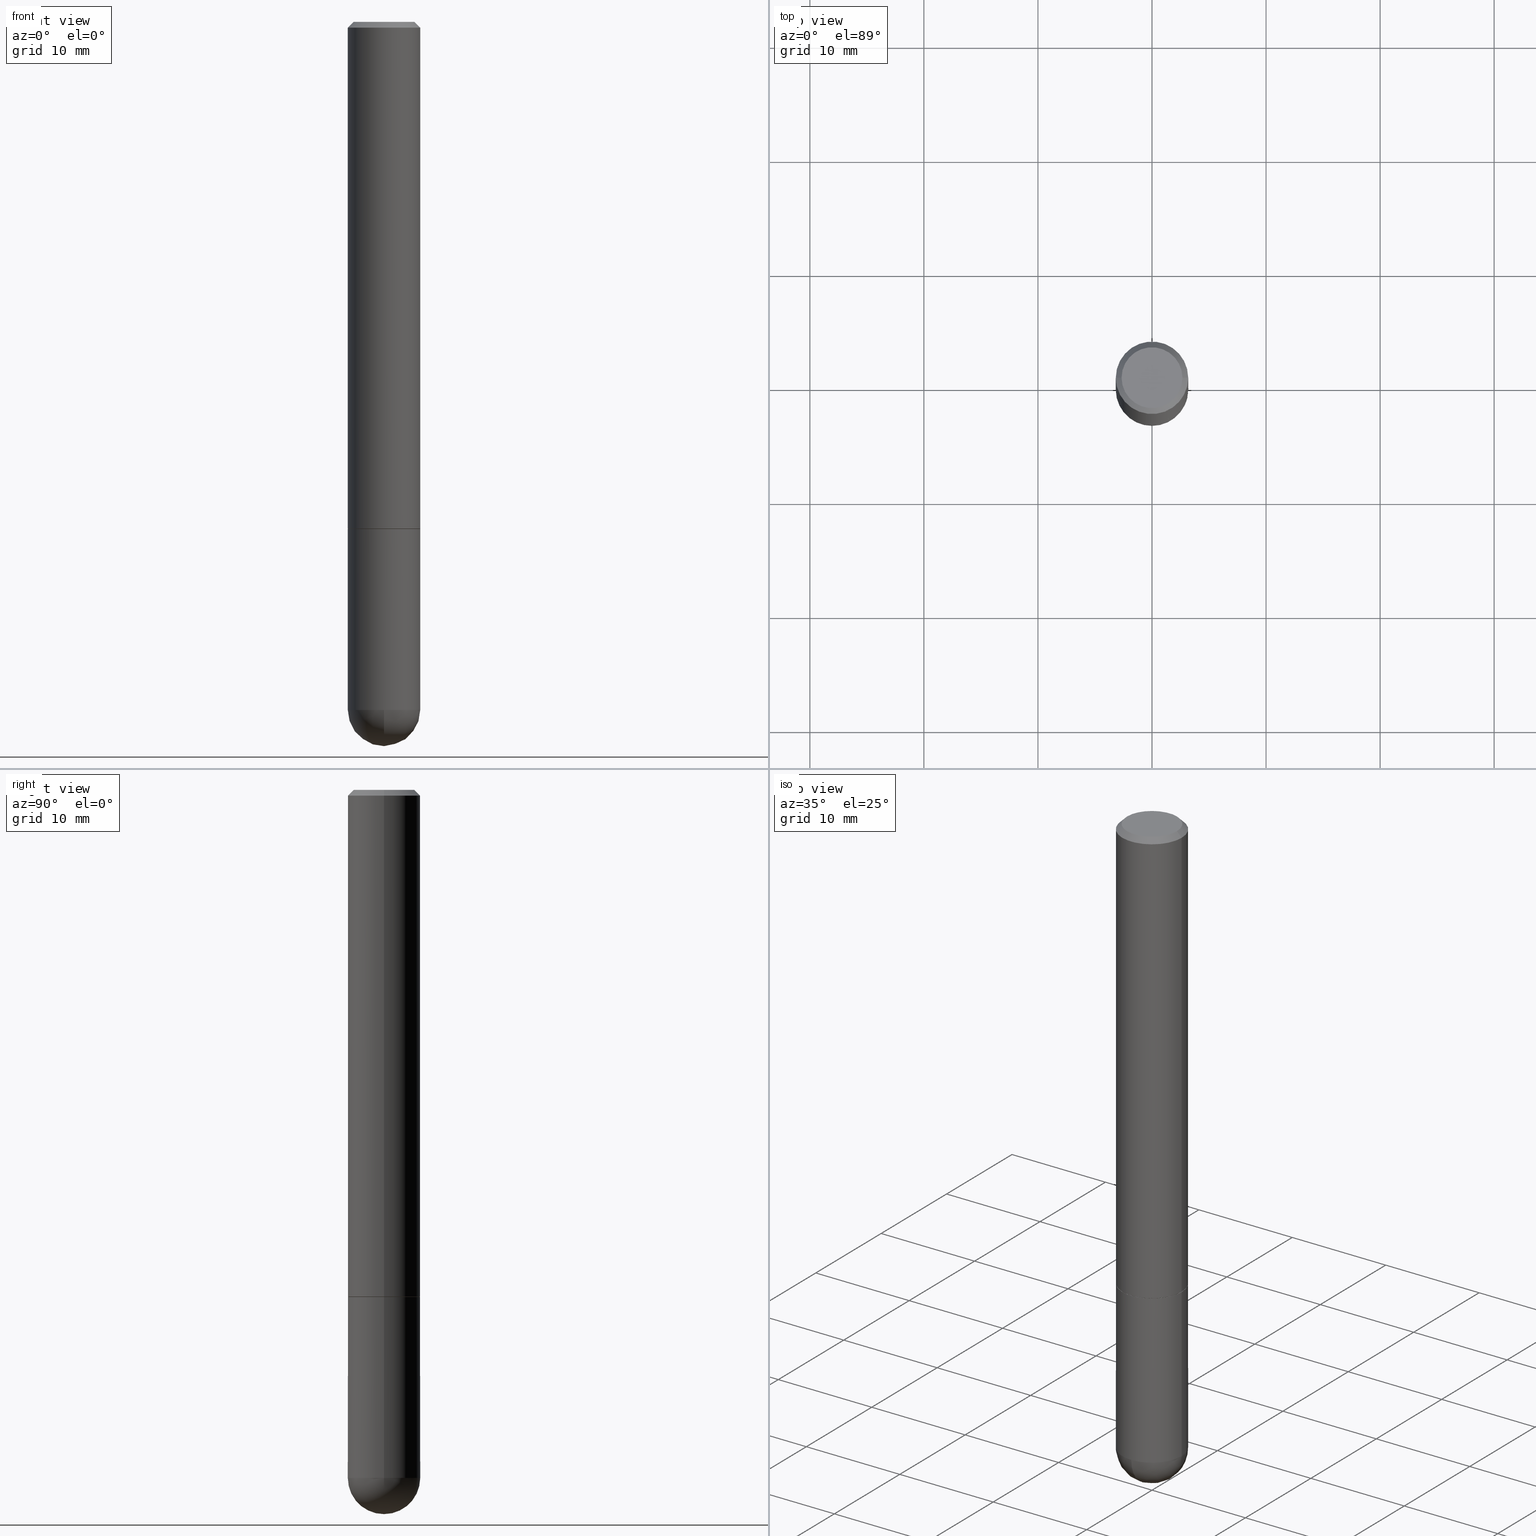
[diagram: canonical four-view strip — front | top / right | iso, engineering-drawing reading convention]
A machine part, canonical four-view strip (front | top / right | iso — engineering-drawing reading convention). The complete STEP part file that produces these views, byte-faithful:
ISO-10303-21;
HEADER;
FILE_DESCRIPTION (( 'STEP AP203' ),
    '1' );
FILE_NAME ('34973.STEP',
    '2024-02-21T18:34:45',
    ( '' ),
    ( '' ),
    'SwSTEP 2.0',
    'SolidWorks 2023',
    '' );
FILE_SCHEMA (( 'CONFIG_CONTROL_DESIGN' ));
ENDSEC;

DATA;
#1 = LINE ( 'NONE', #148, #411 ) ;
#2 = CARTESIAN_POINT ( 'NONE',  ( -0.1250000000000000000, -6.313001841663863345E-15, -1.750000000000000222 ) ) ;
#3 = FACE_OUTER_BOUND ( 'NONE', #371, .T. ) ;
#4 = PRODUCT_DEFINITION_SHAPE ( 'NONE', 'NONE',  #291 ) ;
#5 = ORIENTED_EDGE ( 'NONE', *, *, #398, .T. ) ;
#6 = CARTESIAN_POINT ( 'NONE',  ( 0.1250000000000000000, -8.074050596074771916E-15, -2.375000000000000000 ) ) ;
#7 = DIRECTION ( 'NONE',  ( 1.000000000000000000, -6.982962677686266711E-15, 4.876176775795935793E-29 ) ) ;
#8 = AXIS2_PLACEMENT_3D ( 'NONE', #189, #325, #159 ) ;
#9 = EDGE_CURVE ( 'NONE', #217, #346, #382, .T. ) ;
#10 = ADVANCED_BREP_SHAPE_REPRESENTATION ( '34973', ( #219, #220, #114 ), #305 ) ;
#11 = APPROVAL_ROLE ( '' ) ;
#12 = ORIENTED_EDGE ( 'NONE', *, *, #50, .F. ) ;
#13 = ADVANCED_FACE ( 'NONE', ( #271 ), #231, .T. ) ;
#14 = ORIENTED_EDGE ( 'NONE', *, *, #162, .T. ) ;
#15 = DIRECTION ( 'NONE',  ( 1.000000000000000000, -6.982962677686264344E-15, 0.000000000000000000 ) ) ;
#16 = CARTESIAN_POINT ( 'NONE',  ( 8.728703347108403340E-16, 0.1249999999999915623, -2.375000000000000888 ) ) ;
#17 = CIRCLE ( 'NONE', #288, 0.1250000000000001943 ) ;
#18 = APPROVAL_PERSON_ORGANIZATION ( #366, #230, #11 ) ;
#19 = ORIENTED_EDGE ( 'NONE', *, *, #134, .F. ) ;
#20 = CALENDAR_DATE ( 2024, 21, 2 ) ;
#21 = CARTESIAN_POINT ( 'NONE',  ( 0.1250000000000000000, -8.728703347107833388E-16, 6.095220969744919741E-30 ) ) ;
#22 = EDGE_CURVE ( 'NONE', #146, #346, #187, .T. ) ;
#23 = DIRECTION ( 'NONE',  ( -1.000000000000000000, 7.105427357601001070E-15, -4.926315508542082329E-29 ) ) ;
#24 = EDGE_LOOP ( 'NONE', ( #169, #121 ) ) ;
#25 = DIRECTION ( 'NONE',  ( 1.000000000000000000, -6.982962677686267499E-15, 0.000000000000000000 ) ) ;
#26 = AXIS2_PLACEMENT_3D ( 'NONE', #197, #92, #336 ) ;
#27 = FACE_OUTER_BOUND ( 'NONE', #378, .T. ) ;
#28 = SECURITY_CLASSIFICATION ( '', '', #32 ) ;
#29 = DIRECTION ( 'NONE',  ( -0.7071067811866138531, 7.493145998870593974E-15, 0.7071067811864811814 ) ) ;
#30 = EDGE_LOOP ( 'NONE', ( #78, #377, #275, #311 ) ) ;
#31 = AXIS2_PLACEMENT_3D ( 'NONE', #53, #168, #73 ) ;
#32 = SECURITY_CLASSIFICATION_LEVEL ( 'unclassified' ) ;
#33 = DIRECTION ( 'NONE',  ( 0.7071067811866138531, -2.468850131082952047E-15, 0.7071067811864811814 ) ) ;
#34 = CARTESIAN_POINT ( 'NONE',  ( -1.346568324492433449E-44, 1.922542689790777039E-30, 5.506381112229530704E-16 ) ) ;
#35 = ORIENTED_EDGE ( 'NONE', *, *, #119, .T. ) ;
#36 = VERTEX_POINT ( 'NONE', #77 ) ;
#37 = AXIS2_PLACEMENT_3D ( 'NONE', #211, #314, #100 ) ;
#38 = LOCAL_TIME ( 13, 34, 45.00000000000000000, #322 ) ;
#39 = ORIENTED_EDGE ( 'NONE', *, *, #162, .F. ) ;
#40 = EDGE_CURVE ( 'NONE', #36, #171, #193, .T. ) ;
#41 = ORIENTED_EDGE ( 'NONE', *, *, #327, .T. ) ;
#42 = ORIENTED_EDGE ( 'NONE', *, *, #400, .F. ) ;
#43 = DIRECTION ( 'NONE',  ( 1.000000000000000000, -6.982962677686270655E-15, 0.000000000000000000 ) ) ;
#44 = AXIS2_PLACEMENT_3D ( 'NONE', #184, #181, #369 ) ;
#45 = APPLICATION_PROTOCOL_DEFINITION ( 'international standard', 'config_control_design', 1994, #88 ) ;
#46 = DIRECTION ( 'NONE',  ( -2.445468806185136597E-29, 3.491481338843145583E-15, 1.000000000000000000 ) ) ;
#47 = ADVANCED_FACE ( 'NONE', ( #277 ), #208, .F. ) ;
#48 = PERSON_AND_ORGANIZATION_ROLE ( 'design_owner' ) ;
#49 = DATE_TIME_ROLE ( 'creation_date' ) ;
#50 = EDGE_CURVE ( 'NONE', #112, #249, #1, .T. ) ;
#51 = PERSON_AND_ORGANIZATION ( #222, #145 ) ;
#52 = CARTESIAN_POINT ( 'NONE',  ( 0.1250000000000000278, -9.273918764983049407E-16, -0.02000000000000007674 ) ) ;
#53 = CARTESIAN_POINT ( 'NONE',  ( 4.890937612370292426E-31, -6.982962677686317493E-17, -0.02000000000000007674 ) ) ;
#54 = ORIENTED_EDGE ( 'NONE', *, *, #119, .F. ) ;
#55 = ORIENTED_EDGE ( 'NONE', *, *, #9, .F. ) ;
#56 = ADVANCED_FACE ( 'NONE', ( #244 ), #385, .T. ) ;
#57 = ORIENTED_EDGE ( 'NONE', *, *, #341, .T. ) ;
#58 = APPROVAL_STATUS ( 'not_yet_approved' ) ;
#59 = CLOSED_SHELL ( 'NONE', ( #302, #56, #115, #13, #83, #265, #47, #296 ) ) ;
#60 = ADVANCED_FACE ( 'NONE', ( #129 ), #379, .T. ) ;
#61 = VECTOR ( 'NONE', #98, 39.37007874015748143 ) ;
#62 = ORIENTED_EDGE ( 'NONE', *, *, #255, .F. ) ;
#63 = CC_DESIGN_SECURITY_CLASSIFICATION ( #28, ( #363 ) ) ;
#64 = ORIENTED_EDGE ( 'NONE', *, *, #224, .F. ) ;
#65 = ORIENTED_EDGE ( 'NONE', *, *, #67, .T. ) ;
#66 = EDGE_LOOP ( 'NONE', ( #203, #116, #39, #226 ) ) ;
#67 = EDGE_CURVE ( 'NONE', #171, #89, #196, .T. ) ;
#68 = APPROVAL_DATE_TIME ( #361, #110 ) ;
#69 = DIRECTION ( 'NONE',  ( 1.000000000000000000, -6.982962677686270655E-15, 0.000000000000000000 ) ) ;
#70 = VECTOR ( 'NONE', #167, 39.37007874015748143 ) ;
#71 = DIRECTION ( 'NONE',  ( -2.445468806185136597E-29, 3.491481338843145583E-15, 1.000000000000000000 ) ) ;
#72 = ORIENTED_EDGE ( 'NONE', *, *, #104, .F. ) ;
#73 = DIRECTION ( 'NONE',  ( 1.000000000000000000, -6.982962677686267499E-15, 0.000000000000000000 ) ) ;
#74 = CARTESIAN_POINT ( 'NONE',  ( -0.1250000000000001388, 8.881784197001262184E-16, -6.148668862818638533E-30 ) ) ;
#75 = DIRECTION ( 'NONE',  ( 1.000000000000000000, 0.000000000000000000, 0.000000000000000000 ) ) ;
#76 = DIRECTION ( 'NONE',  ( -2.445468806185136877E-29, 3.491481338843145188E-15, 1.000000000000000000 ) ) ;
#77 = CARTESIAN_POINT ( 'NONE',  ( -8.881784197000694204E-16, -0.1250000000000086320, -2.374999999999999556 ) ) ;
#78 = ORIENTED_EDGE ( 'NONE', *, *, #186, .F. ) ;
#79 = CARTESIAN_POINT ( 'NONE',  ( -0.1250000000000000000, 8.881784197001252323E-16, -6.148668862818632227E-30 ) ) ;
#80 = VECTOR ( 'NONE', #29, 39.37007874015748143 ) ;
#81 = FACE_OUTER_BOUND ( 'NONE', #153, .T. ) ;
#82 = DIRECTION ( 'NONE',  ( -2.445468806185136597E-29, 3.491481338843145583E-15, 1.000000000000000000 ) ) ;
#83 = ADVANCED_FACE ( 'NONE', ( #206 ), #242, .T. ) ;
#84 = APPROVAL_STATUS ( 'not_yet_approved' ) ;
#85 = VECTOR ( 'NONE', #33, 39.37007874015748143 ) ;
#86 = CONICAL_SURFACE ( 'NONE', #44, 0.1239999999999999991, 0.7853981633975420928 ) ;
#87 = APPROVAL_ROLE ( '' ) ;
#88 = APPLICATION_CONTEXT ( 'configuration controlled 3d designs of mechanical parts and assemblies' ) ;
#89 = VERTEX_POINT ( 'NONE', #16 ) ;
#90 = EDGE_LOOP ( 'NONE', ( #72, #293, #137, #41, #301 ) ) ;
#91 = VECTOR ( 'NONE', #192, 39.37007874015748143 ) ;
#92 = DIRECTION ( 'NONE',  ( -2.445468806185136597E-29, 3.491481338843145583E-15, 1.000000000000000000 ) ) ;
#93 = DIRECTION ( 'NONE',  ( -1.000000000000000000, 6.982962677686265922E-15, -4.883557194083112901E-29 ) ) ;
#94 = DIRECTION ( 'NONE',  ( -2.445468806185136597E-29, 3.491481338843145583E-15, 1.000000000000000000 ) ) ;
#95 = EDGE_CURVE ( 'NONE', #347, #36, #17, .T. ) ;
#96 = CARTESIAN_POINT ( 'NONE',  ( 0.1239999999999999991, -6.975979715008602784E-15, -1.750000000000000222 ) ) ;
#97 = DATE_AND_TIME ( #383, #108 ) ;
#98 = DIRECTION ( 'NONE',  ( 0.7071067811865459074, -7.319954787623249734E-15, -0.7071067811865491270 ) ) ;
#99 = PERSON_AND_ORGANIZATION_ROLE ( 'creator' ) ;
#100 = DIRECTION ( 'NONE',  ( 1.000000000000000000, -6.982962677686266711E-15, 4.876176775795935793E-29 ) ) ;
#101 = CC_DESIGN_APPROVAL ( #230, ( #28 ) ) ;
#102 =( NAMED_UNIT ( * ) SI_UNIT ( $, .STERADIAN. ) SOLID_ANGLE_UNIT ( ) );
#103 = DIRECTION ( 'NONE',  ( 0.000000000000000000, 0.000000000000000000, 1.000000000000000000 ) ) ;
#104 = EDGE_CURVE ( 'NONE', #340, #408, #401, .T. ) ;
#105 = DIRECTION ( 'NONE',  ( 1.000000000000000000, -6.982962677686266711E-15, 4.876176775795935793E-29 ) ) ;
#106 = DATE_AND_TIME ( #355, #38 ) ;
#107 = CIRCLE ( 'NONE', #151, 0.1239999999999999991 ) ;
#108 = LOCAL_TIME ( 13, 34, 45.00000000000000000, #292 ) ;
#109 = FACE_OUTER_BOUND ( 'NONE', #307, .T. ) ;
#110 = APPROVAL ( #261, 'UNSPECIFIED' ) ;
#111 = CARTESIAN_POINT ( 'NONE',  ( -0.1049999999999994965, 7.681258945454883915E-16, 5.506381112229478442E-16 ) ) ;
#112 = VERTEX_POINT ( 'NONE', #111 ) ;
#113 = CIRCLE ( 'NONE', #350, 0.1049999999999994965 ) ;
#114 = AXIS2_PLACEMENT_3D ( 'NONE', #391, #103, #75 ) ;
#115 = ADVANCED_FACE ( 'NONE', ( #81 ), #370, .T. ) ;
#116 = ORIENTED_EDGE ( 'NONE', *, *, #191, .T. ) ;
#117 = CARTESIAN_POINT ( 'NONE',  ( 4.279570410823989044E-29, -6.110092342975505460E-15, -1.750000000000000222 ) ) ;
#118 = FACE_OUTER_BOUND ( 'NONE', #24, .T. ) ;
#119 = EDGE_CURVE ( 'NONE', #150, #146, #264, .T. ) ;
#120 = CARTESIAN_POINT ( 'NONE',  ( 5.476868636775814291E-29, -8.766450547892521992E-15, -2.375000000000000000 ) ) ;
#121 = ORIENTED_EDGE ( 'NONE', *, *, #130, .T. ) ;
#122 = AXIS2_PLACEMENT_3D ( 'NONE', #290, #128, #7 ) ;
#123 = DIRECTION ( 'NONE',  ( -2.445468806185136597E-29, 3.491481338843145583E-15, 1.000000000000000000 ) ) ;
#124 = CYLINDRICAL_SURFACE ( 'NONE', #214, 0.1250000000000000000 ) ;
#125 = CC_DESIGN_DATE_AND_TIME_ASSIGNMENT ( #97, #209, ( #28 ) ) ;
#126 = DIRECTION ( 'NONE',  ( -0.7071067811865459074, 2.468850131082240100E-15, -0.7071067811865491270 ) ) ;
#127 = CARTESIAN_POINT ( 'NONE',  ( 4.279570410823989044E-29, -6.110092342975505460E-15, -1.750000000000000222 ) ) ;
#128 = DIRECTION ( 'NONE',  ( -2.445468806185136597E-29, 3.491481338843145583E-15, 1.000000000000000000 ) ) ;
#129 = FACE_OUTER_BOUND ( 'NONE', #352, .T. ) ;
#130 = EDGE_CURVE ( 'NONE', #374, #112, #320, .T. ) ;
#131 = DIRECTION ( 'NONE',  ( -2.445468806185136597E-29, 3.491481338843145583E-15, 1.000000000000000000 ) ) ;
#132 = ORIENTED_EDGE ( 'NONE', *, *, #327, .F. ) ;
#133 = DESIGN_CONTEXT ( 'detailed design', #323, 'design' ) ;
#134 = EDGE_CURVE ( 'NONE', #283, #408, #263, .T. ) ;
#135 = DIRECTION ( 'NONE',  ( 6.982962677686265133E-15, 1.000000000000000000, 0.000000000000000000 ) ) ;
#136 = AXIS2_PLACEMENT_3D ( 'NONE', #390, #218, #135 ) ;
#137 = ORIENTED_EDGE ( 'NONE', *, *, #40, .T. ) ;
#138 = CC_DESIGN_PERSON_AND_ORGANIZATION_ASSIGNMENT ( #139, #223, ( #291 ) ) ;
#139 = PERSON_AND_ORGANIZATION ( #222, #145 ) ;
#140 = EDGE_LOOP ( 'NONE', ( #312, #245, #274, #64 ) ) ;
#141 = LINE ( 'NONE', #399, #188 ) ;
#142 = ORIENTED_EDGE ( 'NONE', *, *, #254, .F. ) ;
#143 = PRODUCT_RELATED_PRODUCT_CATEGORY ( 'detail', '', ( #228 ) ) ;
#144 = VECTOR ( 'NONE', #76, 39.37007874015748143 ) ;
#145 = ORGANIZATION ( 'UNSPECIFIED', 'UNSPECIFIED', '' ) ;
#146 = VERTEX_POINT ( 'NONE', #294 ) ;
#147 = AXIS2_PLACEMENT_3D ( 'NONE', #178, #200, #338 ) ;
#148 = CARTESIAN_POINT ( 'NONE',  ( -0.1250000000000000278, 8.030407079339204351E-16, -0.02000000000000007674 ) ) ;
#149 = ORIENTED_EDGE ( 'NONE', *, *, #50, .T. ) ;
#150 = VERTEX_POINT ( 'NONE', #337 ) ;
#151 = AXIS2_PLACEMENT_3D ( 'NONE', #365, #82, #195 ) ;
#152 = DIRECTION ( 'NONE',  ( -1.000000000000000000, 6.982962677686265922E-15, -4.876176775795935793E-29 ) ) ;
#153 = EDGE_LOOP ( 'NONE', ( #216, #57, #14, #12 ) ) ;
#154 = ORIENTED_EDGE ( 'NONE', *, *, #254, .T. ) ;
#155 = AXIS2_PLACEMENT_3D ( 'NONE', #267, #201, #268 ) ;
#156 = PLANE ( 'NONE',  #8 ) ;
#157 = CARTESIAN_POINT ( 'NONE',  ( 4.277124942017804562E-29, -6.106600861636661664E-15, -1.749000000000000110 ) ) ;
#158 = PERSON_AND_ORGANIZATION ( #222, #145 ) ;
#159 = DIRECTION ( 'NONE',  ( -1.000000000000000000, 6.982962677686265922E-15, -4.876176775795935793E-29 ) ) ;
#160 = APPROVAL_DATE_TIME ( #358, #170 ) ;
#161 = DIRECTION ( 'NONE',  ( 6.982962677686265922E-15, 1.000000000000000000, -4.370956789862814839E-15 ) ) ;
#162 = EDGE_CURVE ( 'NONE', #269, #249, #304, .T. ) ;
#163 = CARTESIAN_POINT ( 'NONE',  ( 5.476868636775814291E-29, -8.766450547892521992E-15, -2.375000000000000000 ) ) ;
#164 = DIRECTION ( 'NONE',  ( 1.000000000000000000, -6.982962677686262766E-15, 0.000000000000000000 ) ) ;
#165 = AXIS2_PLACEMENT_3D ( 'NONE', #202, #123, #303 ) ;
#166 = APPROVAL_PERSON_ORGANIZATION ( #225, #170, #87 ) ;
#167 = DIRECTION ( 'NONE',  ( -2.445468806185136877E-29, 3.491481338843145188E-15, 1.000000000000000000 ) ) ;
#168 = DIRECTION ( 'NONE',  ( -2.445468806185136597E-29, 3.491481338843145583E-15, 1.000000000000000000 ) ) ;
#169 = ORIENTED_EDGE ( 'NONE', *, *, #372, .T. ) ;
#170 = APPROVAL ( #58, 'UNSPECIFIED' ) ;
#171 = VERTEX_POINT ( 'NONE', #6 ) ;
#172 = AXIS2_PLACEMENT_3D ( 'NONE', #246, #173, #69 ) ;
#173 = DIRECTION ( 'NONE',  ( -2.445468806185136597E-29, 3.491481338843145583E-15, 1.000000000000000000 ) ) ;
#174 = ORIENTED_EDGE ( 'NONE', *, *, #95, .F. ) ;
#175 = ORIENTED_EDGE ( 'NONE', *, *, #372, .F. ) ;
#176 = ORIENTED_EDGE ( 'NONE', *, *, #67, .F. ) ;
#177 = DIRECTION ( 'NONE',  ( -1.000000000000000000, 6.982962677686267499E-15, 0.000000000000000000 ) ) ;
#178 = CARTESIAN_POINT ( 'NONE',  ( 0.000000000000000000, 0.000000000000000000, 0.000000000000000000 ) ) ;
#179 = CC_DESIGN_APPROVAL ( #170, ( #291 ) ) ;
#180 = DIRECTION ( 'NONE',  ( 1.000000000000000000, -6.982962677686265922E-15, 4.876176775795935793E-29 ) ) ;
#181 = DIRECTION ( 'NONE',  ( -2.445468806185136597E-29, 3.491481338843145583E-15, 1.000000000000000000 ) ) ;
#182 = DIRECTION ( 'NONE',  ( 1.000000000000000000, -6.982962677686266711E-15, 4.852736867747389749E-29 ) ) ;
#183 = CALENDAR_DATE ( 2024, 21, 2 ) ;
#184 = CARTESIAN_POINT ( 'NONE',  ( 4.279570410823989044E-29, -6.110092342975505460E-15, -1.750000000000000222 ) ) ;
#185 = FACE_OUTER_BOUND ( 'NONE', #30, .T. ) ;
#186 = EDGE_CURVE ( 'NONE', #347, #89, #402, .T. ) ;
#187 = CIRCLE ( 'NONE', #232, 0.1250000000000002498 ) ;
#188 = VECTOR ( 'NONE', #262, 39.37007874015748143 ) ;
#189 = CARTESIAN_POINT ( 'NONE',  ( 7.332110811570543758E-16, 0.1049999999999994965, -9.128648496705199626E-17 ) ) ;
#190 = PERSON_AND_ORGANIZATION ( #222, #145 ) ;
#191 = EDGE_CURVE ( 'NONE', #146, #249, #351, .T. ) ;
#192 = DIRECTION ( 'NONE',  ( -2.445468806185136877E-29, 3.491481338843145188E-15, 1.000000000000000000 ) ) ;
#193 = CIRCLE ( 'NONE', #165, 0.1250000000000000000 ) ;
#194 = ADVANCED_FACE ( 'NONE', ( #185 ), #273, .T. ) ;
#195 = DIRECTION ( 'NONE',  ( 1.000000000000000000, -6.982962677686270655E-15, 0.000000000000000000 ) ) ;
#196 = CIRCLE ( 'NONE', #310, 0.1250000000000000000 ) ;
#197 = CARTESIAN_POINT ( 'NONE',  ( 4.279570410823989044E-29, -6.110092342975505460E-15, -1.750000000000000222 ) ) ;
#198 = CC_DESIGN_PERSON_AND_ORGANIZATION_ASSIGNMENT ( #51, #260, ( #28 ) ) ;
#199 = COORDINATED_UNIVERSAL_TIME_OFFSET ( 5, 0, .BEHIND. ) ;
#200 = DIRECTION ( 'NONE',  ( -2.445468806185136597E-29, 3.491481338843145583E-15, 1.000000000000000000 ) ) ;
#201 = DIRECTION ( 'NONE',  ( -2.445468806185136597E-29, 3.491481338843145583E-15, 1.000000000000000000 ) ) ;
#202 = CARTESIAN_POINT ( 'NONE',  ( 5.807988414689700538E-29, -8.292268179752471696E-15, -2.375000000000000000 ) ) ;
#203 = ORIENTED_EDGE ( 'NONE', *, *, #255, .T. ) ;
#204 = CARTESIAN_POINT ( 'NONE',  ( 4.890937612370292426E-31, -6.982962677686317493E-17, -0.02000000000000007674 ) ) ;
#205 = CIRCLE ( 'NONE', #172, 0.1250000000000000000 ) ;
#206 = FACE_OUTER_BOUND ( 'NONE', #140, .T. ) ;
#207 = CC_DESIGN_PERSON_AND_ORGANIZATION_ASSIGNMENT ( #313, #99, ( #363 ) ) ;
#208 = PLANE ( 'NONE',  #221 ) ;
#209 = DATE_TIME_ROLE ( 'classification_date' ) ;
#210 = EDGE_LOOP ( 'NONE', ( #403, #234 ) ) ;
#211 = CARTESIAN_POINT ( 'NONE',  ( 0.000000000000000000, 0.000000000000000000, 0.000000000000000000 ) ) ;
#212 = DIRECTION ( 'NONE',  ( 2.438088387897960049E-29, -3.491481338843145188E-15, -1.000000000000000000 ) ) ;
#213 = EDGE_CURVE ( 'NONE', #346, #269, #141, .T. ) ;
#214 = AXIS2_PLACEMENT_3D ( 'NONE', #279, #46, #105 ) ;
#215 = LINE ( 'NONE', #21, #70 ) ;
#216 = ORIENTED_EDGE ( 'NONE', *, *, #130, .F. ) ;
#217 = VERTEX_POINT ( 'NONE', #227 ) ;
#218 = DIRECTION ( 'NONE',  ( 1.000000000000000000, -6.982962677686265922E-15, 4.883557194083112340E-29 ) ) ;
#219 = MANIFOLD_SOLID_BREP ( 'Body-Move/Copy2[1]', #342 ) ;
#220 = MANIFOLD_SOLID_BREP ( 'Body-Move/Copy2[2]', #59 ) ;
#221 = AXIS2_PLACEMENT_3D ( 'NONE', #117, #237, #180 ) ;
#222 = PERSON ( 'UNSPECIFIED', 'UNSPECIFIED', 'UNSPECIFIED', ('UNSPECIFIED'), ('UNSPECIFIED'), ('UNSPECIFIED') ) ;
#223 = PERSON_AND_ORGANIZATION_ROLE ( 'creator' ) ;
#224 = EDGE_CURVE ( 'NONE', #249, #269, #362, .T. ) ;
#225 = PERSON_AND_ORGANIZATION ( #222, #145 ) ;
#226 = ORIENTED_EDGE ( 'NONE', *, *, #213, .F. ) ;
#227 = CARTESIAN_POINT ( 'NONE',  ( 0.1239999999999999991, -6.975979715008602784E-15, -1.750000000000000222 ) ) ;
#228 = PRODUCT ( '34973', '34973', '', ( #328 ) ) ;
#229 = CARTESIAN_POINT ( 'NONE',  ( -0.1250000000000000278, 8.030407079339204351E-16, -0.02000000000000007674 ) ) ;
#230 = APPROVAL ( #84, 'UNSPECIFIED' ) ;
#231 = CONICAL_SURFACE ( 'NONE', #357, 0.1250000000000000278, 0.7853981633974460586 ) ;
#232 = AXIS2_PLACEMENT_3D ( 'NONE', #373, #392, #359 ) ;
#233 = AXIS2_PLACEMENT_3D ( 'NONE', #120, #318, #161 ) ;
#234 = ORIENTED_EDGE ( 'NONE', *, *, #409, .T. ) ;
#235 = CYLINDRICAL_SURFACE ( 'NONE', #122, 0.1250000000000000000 ) ;
#236 = ORIENTED_EDGE ( 'NONE', *, *, #40, .F. ) ;
#237 = DIRECTION ( 'NONE',  ( -2.438088387897960049E-29, 3.491481338843145188E-15, 1.000000000000000000 ) ) ;
#238 = EDGE_LOOP ( 'NONE', ( #280, #175, #149, #406 ) ) ;
#239 = EDGE_LOOP ( 'NONE', ( #142, #42 ) ) ;
#240 = CARTESIAN_POINT ( 'NONE',  ( 0.1250000000000002498, -6.979471196347446580E-15, -1.749000000000000110 ) ) ;
#241 = AXIS2_PLACEMENT_3D ( 'NONE', #299, #212, #152 ) ;
#242 = CYLINDRICAL_SURFACE ( 'NONE', #147, 0.1250000000000001388 ) ;
#243 = LOCAL_TIME ( 13, 34, 45.00000000000000000, #345 ) ;
#244 = FACE_OUTER_BOUND ( 'NONE', #66, .T. ) ;
#245 = ORIENTED_EDGE ( 'NONE', *, *, #22, .T. ) ;
#246 = CARTESIAN_POINT ( 'NONE',  ( 5.807988414689700538E-29, -8.292268179752471696E-15, -2.375000000000000000 ) ) ;
#247 = DIRECTION ( 'NONE',  ( -2.445468806185136597E-29, 3.491481338843145583E-15, 1.000000000000000000 ) ) ;
#248 = LINE ( 'NONE', #387, #61 ) ;
#249 = VERTEX_POINT ( 'NONE', #229 ) ;
#250 = ORIENTED_EDGE ( 'NONE', *, *, #9, .T. ) ;
#251 = SHAPE_DEFINITION_REPRESENTATION ( #4, #10 ) ;
#252 = AXIS2_PLACEMENT_3D ( 'NONE', #157, #285, #15 ) ;
#253 = CIRCLE ( 'NONE', #412, 0.1250000000000000000 ) ;
#254 = EDGE_CURVE ( 'NONE', #217, #150, #107, .T. ) ;
#255 = EDGE_CURVE ( 'NONE', #346, #146, #270, .T. ) ;
#256 = APPLICATION_PROTOCOL_DEFINITION ( 'international standard', 'config_control_design', 1994, #323 ) ;
#257 = DATE_AND_TIME ( #331, #289 ) ;
#258 = AXIS2_PLACEMENT_3D ( 'NONE', #375, #339, #164 ) ;
#259 = APPROVAL_PERSON_ORGANIZATION ( #158, #110, #364 ) ;
#260 = PERSON_AND_ORGANIZATION_ROLE ( 'classification_officer' ) ;
#261 = APPROVAL_STATUS ( 'not_yet_approved' ) ;
#262 = DIRECTION ( 'NONE',  ( -2.445468806185136877E-29, 3.491481338843145188E-15, 1.000000000000000000 ) ) ;
#263 = CIRCLE ( 'NONE', #258, 0.1250000000000000000 ) ;
#264 = LINE ( 'NONE', #367, #80 ) ;
#265 = ADVANCED_FACE ( 'NONE', ( #27 ), #394, .T. ) ;
#266 = ORIENTED_EDGE ( 'NONE', *, *, #22, .F. ) ;
#267 = CARTESIAN_POINT ( 'NONE',  ( -1.346568324492433449E-44, 1.922542689790777039E-30, 5.506381112229530704E-16 ) ) ;
#268 = DIRECTION ( 'NONE',  ( 1.000000000000000000, -6.982962677686266711E-15, 4.852736867747389749E-29 ) ) ;
#269 = VERTEX_POINT ( 'NONE', #52 ) ;
#270 = CIRCLE ( 'NONE', #252, 0.1250000000000002498 ) ;
#271 = FACE_OUTER_BOUND ( 'NONE', #238, .T. ) ;
#272 = PERSON_AND_ORGANIZATION ( #222, #145 ) ;
#273 = SPHERICAL_SURFACE ( 'NONE', #233, 0.1250000000000001943 ) ;
#274 = ORIENTED_EDGE ( 'NONE', *, *, #213, .T. ) ;
#275 = ORIENTED_EDGE ( 'NONE', *, *, #287, .F. ) ;
#276 = AXIS2_PLACEMENT_3D ( 'NONE', #393, #131, #43 ) ;
#277 = FACE_OUTER_BOUND ( 'NONE', #239, .T. ) ;
#278 = DIRECTION ( 'NONE',  ( 1.000000000000000000, -6.982962677686270655E-15, 0.000000000000000000 ) ) ;
#279 = CARTESIAN_POINT ( 'NONE',  ( 0.000000000000000000, 0.000000000000000000, 0.000000000000000000 ) ) ;
#280 = ORIENTED_EDGE ( 'NONE', *, *, #341, .F. ) ;
#281 = CARTESIAN_POINT ( 'NONE',  ( 0.1250000000000000000, -6.982962677686288010E-15, -1.750000000000000222 ) ) ;
#282 = ORIENTED_EDGE ( 'NONE', *, *, #400, .T. ) ;
#283 = VERTEX_POINT ( 'NONE', #281 ) ;
#284 = APPROVAL_DATE_TIME ( #257, #230 ) ;
#285 = DIRECTION ( 'NONE',  ( -2.445468806185136597E-29, 3.491481338843145583E-15, 1.000000000000000000 ) ) ;
#286 = COORDINATED_UNIVERSAL_TIME_OFFSET ( 5, 0, .BEHIND. ) ;
#287 = EDGE_CURVE ( 'NONE', #340, #36, #205, .T. ) ;
#288 = AXIS2_PLACEMENT_3D ( 'NONE', #163, #23, #360 ) ;
#289 = LOCAL_TIME ( 13, 34, 45.00000000000000000, #286 ) ;
#290 = CARTESIAN_POINT ( 'NONE',  ( 0.000000000000000000, 0.000000000000000000, 0.000000000000000000 ) ) ;
#291 = PRODUCT_DEFINITION ( 'UNKNOWN', '', #363, #133 ) ;
#292 = COORDINATED_UNIVERSAL_TIME_OFFSET ( 5, 0, .BEHIND. ) ;
#293 = ORIENTED_EDGE ( 'NONE', *, *, #287, .T. ) ;
#294 = CARTESIAN_POINT ( 'NONE',  ( -0.1250000000000002498, -2.200036824506632516E-15, -1.749000000000000110 ) ) ;
#295 = DIRECTION ( 'NONE',  ( -2.445468806185136597E-29, 3.491481338843145583E-15, 1.000000000000000000 ) ) ;
#296 = ADVANCED_FACE ( 'NONE', ( #118 ), #156, .F. ) ;
#297 = CIRCLE ( 'NONE', #276, 0.1250000000000000000 ) ;
#298 = CARTESIAN_POINT ( 'NONE',  ( 4.890937612370292426E-31, -6.982962677686317493E-17, -0.02000000000000007674 ) ) ;
#299 = CARTESIAN_POINT ( 'NONE',  ( 8.728703347108260359E-16, 0.1249999999999938799, -1.750000000000000666 ) ) ;
#300 = DIRECTION ( 'NONE',  ( 2.445468806185136597E-29, -3.491481338843145583E-15, -1.000000000000000000 ) ) ;
#301 = ORIENTED_EDGE ( 'NONE', *, *, #409, .F. ) ;
#302 = ADVANCED_FACE ( 'NONE', ( #3 ), #86, .T. ) ;
#303 = DIRECTION ( 'NONE',  ( 1.000000000000000000, -6.982962677686270655E-15, 0.000000000000000000 ) ) ;
#304 = CIRCLE ( 'NONE', #31, 0.1250000000000000278 ) ;
#305 =( GEOMETRIC_REPRESENTATION_CONTEXT ( 3 ) GLOBAL_UNCERTAINTY_ASSIGNED_CONTEXT ( ( #368 ) ) GLOBAL_UNIT_ASSIGNED_CONTEXT ( ( #326, #316, #102 ) ) REPRESENTATION_CONTEXT ( 'NONE', 'WORKASPACE' ) );
#306 = CARTESIAN_POINT ( 'NONE',  ( 5.787897026856327965E-29, -9.195231672753244292E-15, -2.500000000000000444 ) ) ;
#307 = EDGE_LOOP ( 'NONE', ( #5, #384, #19, #132, #65 ) ) ;
#308 = CARTESIAN_POINT ( 'NONE',  ( 4.279570410823989044E-29, -6.110092342975505460E-15, -1.750000000000000222 ) ) ;
#309 = CC_DESIGN_PERSON_AND_ORGANIZATION_ASSIGNMENT ( #190, #48, ( #228 ) ) ;
#310 = AXIS2_PLACEMENT_3D ( 'NONE', #388, #94, #410 ) ;
#311 = ORIENTED_EDGE ( 'NONE', *, *, #398, .F. ) ;
#312 = ORIENTED_EDGE ( 'NONE', *, *, #191, .F. ) ;
#313 = PERSON_AND_ORGANIZATION ( #222, #145 ) ;
#314 = DIRECTION ( 'NONE',  ( -2.445468806185136597E-29, 3.491481338843145583E-15, 1.000000000000000000 ) ) ;
#315 = CARTESIAN_POINT ( 'NONE',  ( 0.1049999999999994965, -8.238720831321551006E-16, 5.506381112229584938E-16 ) ) ;
#316 =( NAMED_UNIT ( * ) PLANE_ANGLE_UNIT ( ) SI_UNIT ( $, .RADIAN. ) );
#317 = DIRECTION ( 'NONE',  ( -2.445468806185136597E-29, 3.491481338843145583E-15, 1.000000000000000000 ) ) ;
#318 = DIRECTION ( 'NONE',  ( -1.000000000000000000, 6.982962677686265922E-15, -4.883557194083112901E-29 ) ) ;
#319 =( LENGTH_UNIT ( ) NAMED_UNIT ( * ) SI_UNIT ( $, .METRE. ) );
#320 = CIRCLE ( 'NONE', #155, 0.1049999999999994965 ) ;
#321 = AXIS2_PLACEMENT_3D ( 'NONE', #308, #317, #278 ) ;
#322 = COORDINATED_UNIVERSAL_TIME_OFFSET ( 5, 0, .BEHIND. ) ;
#323 = APPLICATION_CONTEXT ( 'configuration controlled 3d designs of mechanical parts and assemblies' ) ;
#324 = ADVANCED_FACE ( 'NONE', ( #109 ), #124, .T. ) ;
#325 = DIRECTION ( 'NONE',  ( 2.438088387897960049E-29, -3.491481338843145188E-15, -1.000000000000000000 ) ) ;
#326 =( CONVERSION_BASED_UNIT ( 'INCH', #354 ) LENGTH_UNIT ( ) NAMED_UNIT ( #348 ) );
#327 = EDGE_CURVE ( 'NONE', #171, #283, #215, .T. ) ;
#328 = MECHANICAL_CONTEXT ( 'NONE', #88, 'mechanical' ) ;
#329 = ADVANCED_FACE ( 'NONE', ( #356 ), #397, .F. ) ;
#330 = AXIS2_PLACEMENT_3D ( 'NONE', #376, #93, #353 ) ;
#331 = CALENDAR_DATE ( 2024, 21, 2 ) ;
#332 = CARTESIAN_POINT ( 'NONE',  ( 4.890937612370292426E-31, -6.982962677686317493E-17, -0.02000000000000007674 ) ) ;
#333 = DIRECTION ( 'NONE',  ( -1.000000000000000000, 6.982962677686267499E-15, 0.000000000000000000 ) ) ;
#334 = CC_DESIGN_PERSON_AND_ORGANIZATION_ASSIGNMENT ( #272, #404, ( #363 ) ) ;
#335 = CIRCLE ( 'NONE', #321, 0.1239999999999999991 ) ;
#336 = DIRECTION ( 'NONE',  ( 1.000000000000000000, -6.982962677686270655E-15, 0.000000000000000000 ) ) ;
#337 = CARTESIAN_POINT ( 'NONE',  ( -0.1239999999999999991, -5.223720896284758045E-15, -1.750000000000000222 ) ) ;
#338 = DIRECTION ( 'NONE',  ( 1.000000000000000000, -6.982962677686266711E-15, 4.876176775795935793E-29 ) ) ;
#339 = DIRECTION ( 'NONE',  ( -2.445468806185136597E-29, 3.491481338843145583E-15, 1.000000000000000000 ) ) ;
#340 = VERTEX_POINT ( 'NONE', #405 ) ;
#341 = EDGE_CURVE ( 'NONE', #374, #269, #248, .T. ) ;
#342 = CLOSED_SHELL ( 'NONE', ( #324, #194, #60, #329, #396 ) ) ;
#343 = AXIS2_PLACEMENT_3D ( 'NONE', #298, #300, #333 ) ;
#344 = DIRECTION ( 'NONE',  ( 2.445468806185136597E-29, -3.491481338843145583E-15, -1.000000000000000000 ) ) ;
#345 = COORDINATED_UNIVERSAL_TIME_OFFSET ( 5, 0, .BEHIND. ) ;
#346 = VERTEX_POINT ( 'NONE', #240 ) ;
#347 = VERTEX_POINT ( 'NONE', #306 ) ;
#348 = DIMENSIONAL_EXPONENTS ( 1.000000000000000000, 0.000000000000000000, 0.000000000000000000, 0.000000000000000000, 0.000000000000000000, 0.000000000000000000, 0.000000000000000000 ) ;
#349 = CC_DESIGN_DATE_AND_TIME_ASSIGNMENT ( #106, #49, ( #291 ) ) ;
#350 = AXIS2_PLACEMENT_3D ( 'NONE', #34, #71, #182 ) ;
#351 = LINE ( 'NONE', #74, #144 ) ;
#352 = EDGE_LOOP ( 'NONE', ( #174, #407, #176, #236 ) ) ;
#353 = DIRECTION ( 'NONE',  ( 6.982962677686265922E-15, 1.000000000000000000, -4.370956789862814839E-15 ) ) ;
#354 = LENGTH_MEASURE_WITH_UNIT ( LENGTH_MEASURE( 0.02539999999999999897 ), #319 );
#355 = CALENDAR_DATE ( 2024, 21, 2 ) ;
#356 = FACE_OUTER_BOUND ( 'NONE', #210, .T. ) ;
#357 = AXIS2_PLACEMENT_3D ( 'NONE', #204, #344, #177 ) ;
#358 = DATE_AND_TIME ( #183, #243 ) ;
#359 = DIRECTION ( 'NONE',  ( 1.000000000000000000, -6.982962677686264344E-15, 0.000000000000000000 ) ) ;
#360 = DIRECTION ( 'NONE',  ( -7.105427357601000281E-15, -1.000000000000000000, 0.000000000000000000 ) ) ;
#361 = DATE_AND_TIME ( #20, #395 ) ;
#362 = CIRCLE ( 'NONE', #389, 0.1250000000000000278 ) ;
#363 = PRODUCT_DEFINITION_FORMATION_WITH_SPECIFIED_SOURCE ( 'ANY', '', #228, .NOT_KNOWN. ) ;
#364 = APPROVAL_ROLE ( '' ) ;
#365 = CARTESIAN_POINT ( 'NONE',  ( 4.279570410823989044E-29, -6.110092342975505460E-15, -1.750000000000000222 ) ) ;
#366 = PERSON_AND_ORGANIZATION ( #222, #145 ) ;
#367 = CARTESIAN_POINT ( 'NONE',  ( -0.1239999999999999991, -5.229019350632981236E-15, -1.750000000000000222 ) ) ;
#368 = UNCERTAINTY_MEASURE_WITH_UNIT (LENGTH_MEASURE( 1.000000000000000082E-05 ), #326, 'distance_accuracy_value', 'NONE');
#369 = DIRECTION ( 'NONE',  ( 1.000000000000000000, -6.982962677686270655E-15, 0.000000000000000000 ) ) ;
#370 = CONICAL_SURFACE ( 'NONE', #343, 0.1250000000000000278, 0.7853981633974460586 ) ;
#371 = EDGE_LOOP ( 'NONE', ( #154, #35, #62, #55 ) ) ;
#372 = EDGE_CURVE ( 'NONE', #112, #374, #113, .T. ) ;
#373 = CARTESIAN_POINT ( 'NONE',  ( 4.277124942017804562E-29, -6.106600861636661664E-15, -1.749000000000000110 ) ) ;
#374 = VERTEX_POINT ( 'NONE', #315 ) ;
#375 = CARTESIAN_POINT ( 'NONE',  ( 4.279570410823989044E-29, -6.110092342975505460E-15, -1.750000000000000222 ) ) ;
#376 = CARTESIAN_POINT ( 'NONE',  ( 5.476868636775814291E-29, -8.766450547892521992E-15, -2.375000000000000000 ) ) ;
#377 = ORIENTED_EDGE ( 'NONE', *, *, #95, .T. ) ;
#378 = EDGE_LOOP ( 'NONE', ( #54, #282, #250, #266 ) ) ;
#379 = SPHERICAL_SURFACE ( 'NONE', #330, 0.1250000000000001943 ) ;
#380 = CC_DESIGN_APPROVAL ( #110, ( #363 ) ) ;
#381 = FACE_OUTER_BOUND ( 'NONE', #90, .T. ) ;
#382 = LINE ( 'NONE', #96, #85 ) ;
#383 = CALENDAR_DATE ( 2024, 21, 2 ) ;
#384 = ORIENTED_EDGE ( 'NONE', *, *, #104, .T. ) ;
#385 = CYLINDRICAL_SURFACE ( 'NONE', #37, 0.1250000000000001388 ) ;
#386 = DIRECTION ( 'NONE',  ( 1.000000000000000000, -6.982962677686262766E-15, 0.000000000000000000 ) ) ;
#387 = CARTESIAN_POINT ( 'NONE',  ( 0.1250000000000000278, -9.273918764983049407E-16, -0.02000000000000007674 ) ) ;
#388 = CARTESIAN_POINT ( 'NONE',  ( 5.807988414689700538E-29, -8.292268179752471696E-15, -2.375000000000000000 ) ) ;
#389 = AXIS2_PLACEMENT_3D ( 'NONE', #332, #295, #25 ) ;
#390 = CARTESIAN_POINT ( 'NONE',  ( 5.476868636775814291E-29, -8.766450547892521992E-15, -2.375000000000000000 ) ) ;
#391 = CARTESIAN_POINT ( 'NONE',  ( 0.000000000000000000, 0.000000000000000000, 0.000000000000000000 ) ) ;
#392 = DIRECTION ( 'NONE',  ( -2.445468806185136597E-29, 3.491481338843145583E-15, 1.000000000000000000 ) ) ;
#393 = CARTESIAN_POINT ( 'NONE',  ( 5.807988414689700538E-29, -8.292268179752471696E-15, -2.375000000000000000 ) ) ;
#394 = CONICAL_SURFACE ( 'NONE', #26, 0.1239999999999999991, 0.7853981633975420928 ) ;
#395 = LOCAL_TIME ( 13, 34, 45.00000000000000000, #199 ) ;
#396 = ADVANCED_FACE ( 'NONE', ( #381 ), #235, .T. ) ;
#397 = PLANE ( 'NONE',  #241 ) ;
#398 = EDGE_CURVE ( 'NONE', #89, #340, #297, .T. ) ;
#399 = CARTESIAN_POINT ( 'NONE',  ( 0.1250000000000001388, -8.728703347107843249E-16, 6.095220969744926748E-30 ) ) ;
#400 = EDGE_CURVE ( 'NONE', #150, #217, #335, .T. ) ;
#401 = LINE ( 'NONE', #79, #91 ) ;
#402 = CIRCLE ( 'NONE', #136, 0.1250000000000001943 ) ;
#403 = ORIENTED_EDGE ( 'NONE', *, *, #134, .T. ) ;
#404 = PERSON_AND_ORGANIZATION_ROLE ( 'design_supplier' ) ;
#405 = CARTESIAN_POINT ( 'NONE',  ( -0.1250000000000000000, -6.313001841663864134E-15, -2.375000000000000000 ) ) ;
#406 = ORIENTED_EDGE ( 'NONE', *, *, #224, .T. ) ;
#407 = ORIENTED_EDGE ( 'NONE', *, *, #186, .T. ) ;
#408 = VERTEX_POINT ( 'NONE', #2 ) ;
#409 = EDGE_CURVE ( 'NONE', #408, #283, #253, .T. ) ;
#410 = DIRECTION ( 'NONE',  ( 1.000000000000000000, -6.982962677686270655E-15, 0.000000000000000000 ) ) ;
#411 = VECTOR ( 'NONE', #126, 39.37007874015748143 ) ;
#412 = AXIS2_PLACEMENT_3D ( 'NONE', #127, #247, #386 ) ;
ENDSEC;
END-ISO-10303-21;
